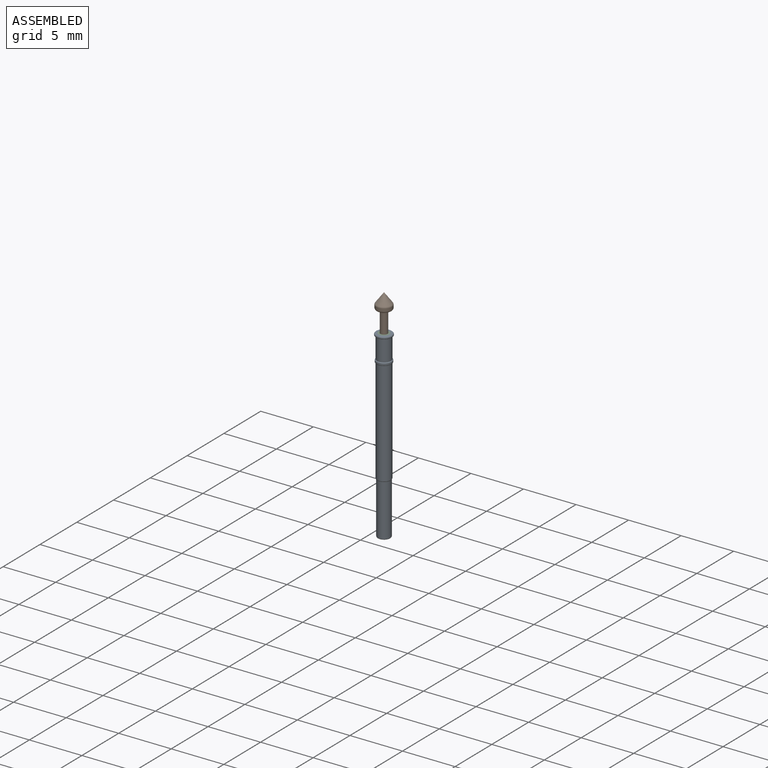
[diagram: assembled view]
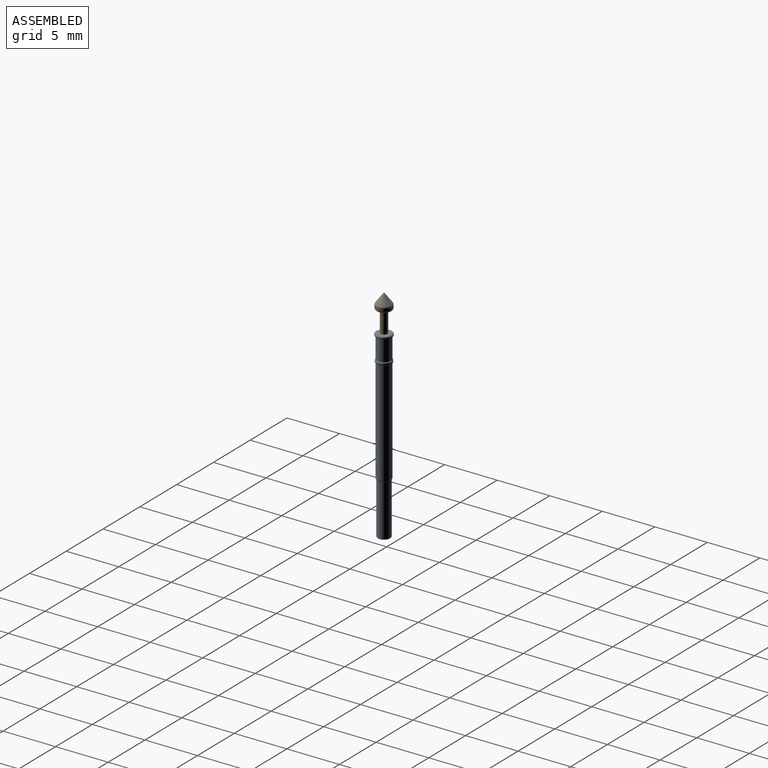
[diagram: assembled view, second angle]
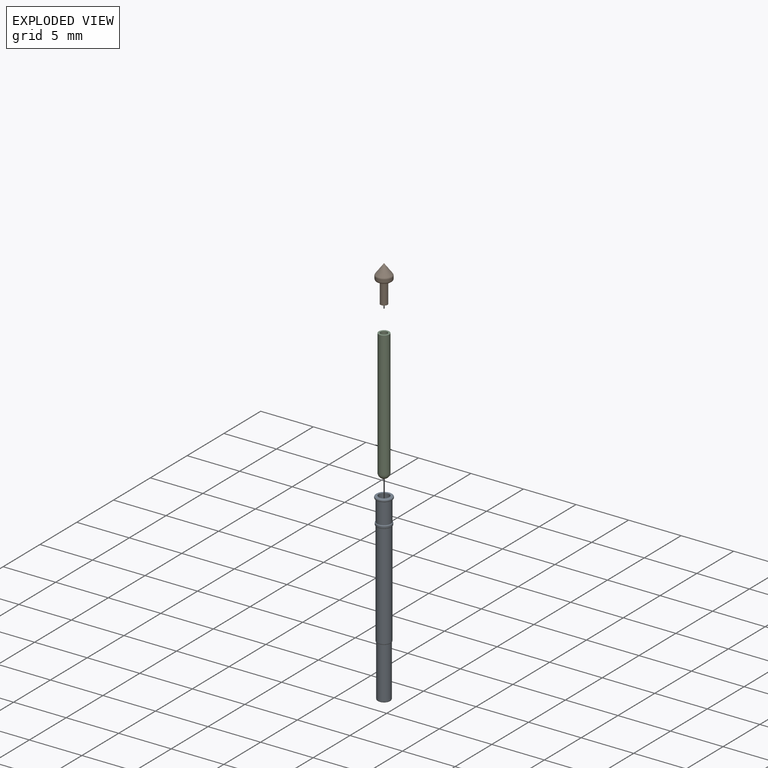
[diagram: exploded view]
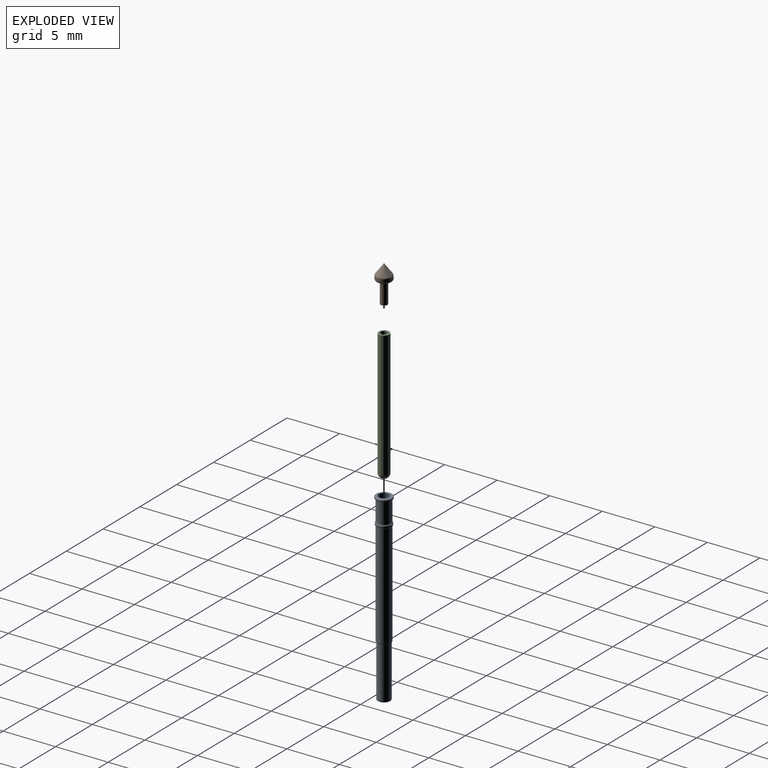
[diagram: exploded view, second angle]
ASSEMBLY  parts=3 mates=2
PART A: 14 faces, bbox 1.7x1.7x17.5 mm
  f0: cylinder r=0.61mm len=4.9mm, axis (0,0,1), area 18.8mm2, adj f8,f9
  f1: cylinder r=0.51mm len=17.54mm, axis (0,0,-1), area 56.2mm2, adj f3,f9
  f2: cylinder r=0.78mm len=1.55mm, axis (0,0,-1), area 0.2mm2, adj f12,f13
  f3: plane 1.35x1.35mm, normal (0,0,1), area 0.6mm2, adj f1,f13
  f4: cylinder r=0.66mm len=2mm, axis (0,0,-1), area 8.3mm2, adj f5,f11
  f5: plane 1.35x1.35mm, normal (0,0,-1), area 0.1mm2, adj f4,f12
  f6: cylinder r=0.72mm len=1.45mm, axis (0,0,-1), area 0.5mm2, adj f10,f11
  f7: cylinder r=0.66mm len=9.91mm, axis (0,0,1), area 41.1mm2, adj f8,f10
  f8: torus R=0.56mm, axis (0,0,-1), area 0.4mm2, adj f0,f7
  f9: torus R=0.51mm, axis (0,0,1), area 0.6mm2, adj f0,f1
  f10: torus R=0.62mm, axis (0,0,-1), area 0.5mm2, adj f6,f7
  f11: torus R=0.62mm, axis (0,0,1), area 0.5mm2, adj f4,f6
  f12: torus R=0.68mm, axis (0,0,1), area 0.7mm2, adj f2,f5
  f13: torus R=0.68mm, axis (0,0,1), area 0.7mm2, adj f2,f3
PART B: 7 faces, bbox 1.6x1.6x3.5 mm
  f0: plane 0.67x0.67mm, normal (0,0,-1), area 0.4mm2, adj f1
  f1: cylinder r=0.34mm len=2mm, axis (0,0,1), area 4.2mm2, adj f0,f2
  f2: plane 1.1x1.1mm, normal (0,0,-1), area 0.6mm2, adj f1,f5
  f3: cylinder r=0.75mm len=1.5mm, axis (0,0,1), area 1.1mm2, adj f5,f6
  f4: cone r=0.75mm half-angle=36.9deg, axis (0,0,-1), area 2.6mm2, adj f6
  f5: torus R=0.55mm, axis (0,0,1), area 1.3mm2, adj f2,f3
  f6: torus R=0.55mm, axis (0,0,-1), area 0.6mm2, adj f3,f4
PART C: 6 faces, bbox 1x1x12.5 mm
  f0: cylinder r=0.51mm len=12mm, axis (0,0,1), area 38.5mm2, adj f2,f5
  f1: plane 0.02x0.02mm, normal (0,0,-1), area 0mm2, adj f5
  f2: plane 1.02x1.02mm, normal (0,0,1), area 0.5mm2, adj f0,f3
  f3: cylinder r=0.34mm len=4mm, axis (0,0,1), area 8.4mm2, adj f2,f4
  f4: plane 0.67x0.67mm, normal (0,0,1), area 0.4mm2, adj f3
  f5: torus R=0.01mm, axis (0,0,1), area 1.6mm2, adj f0,f1
PLACE A rot(axis=(0,0,-1),0deg) t=(-1.23,-3.61,4.21)mm
PLACE B rot(axis=(0,0,-1),0deg) t=(-1.23,-3.61,6.75)mm
PLACE C rot(axis=(0,0,-1),0deg) t=(-1.23,-3.61,6.75)mm
MATE fastened A.f1 <-> C.f0  axis (0,0,1) through (-1.23,-3.61,6.75)mm
MATE slider C.f3 <-> B.f1  axis (0,0,1) through (-1.23,-3.61,6.75)mm
